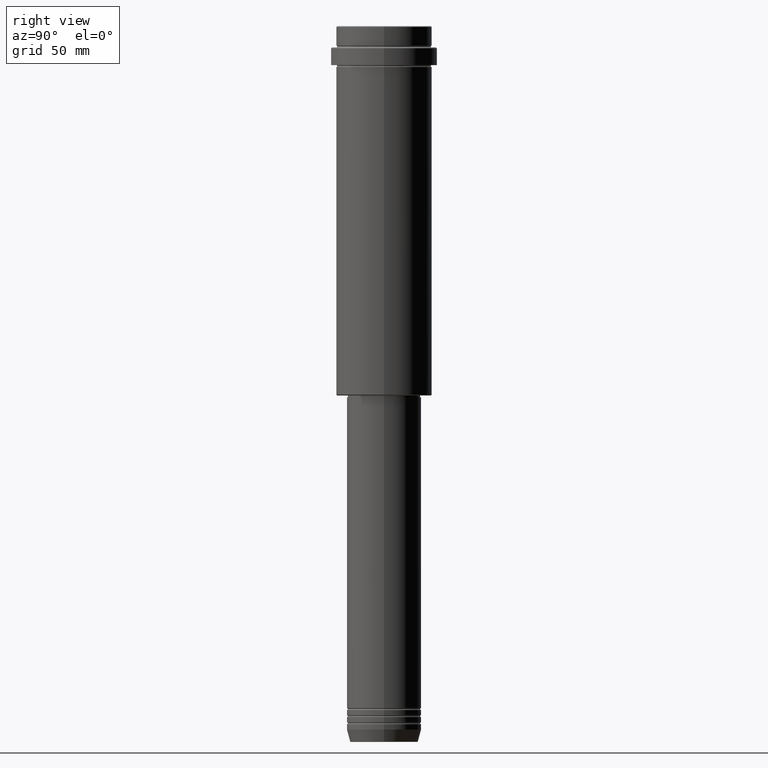
[diagram: clean part render]
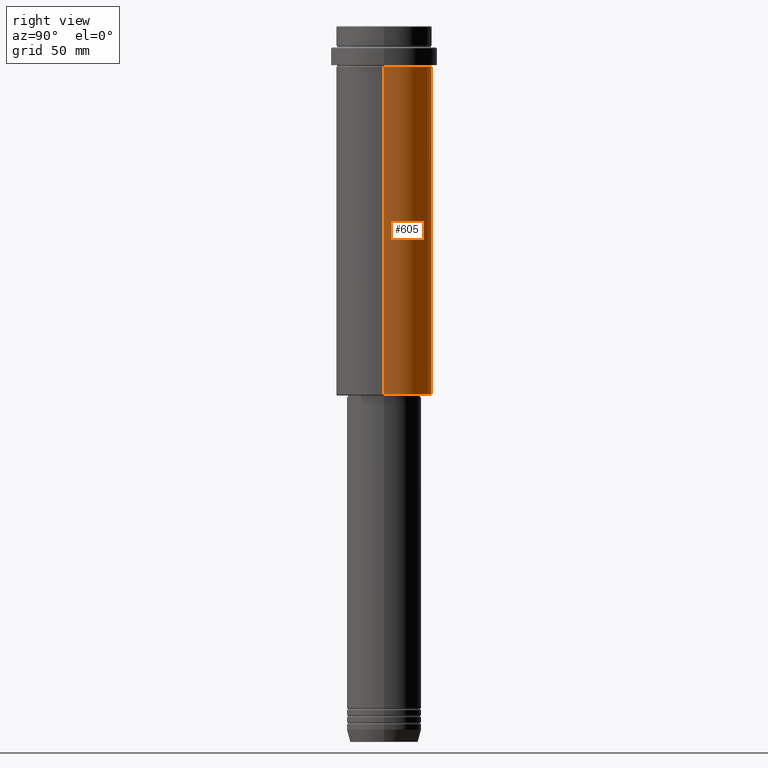
[diagram: same view with one face highlighted and labeled with its STEP entity id]
A machine part, right view. The second image highlights one B-rep face of the part: STEP entity #605.
In plain terms, the highlighted cylindrical surface (partial cylindrical patch) has radius 27 mm, axis along (-0, -0, 1).
Its self-contained STEP definition (entity closure, byte-faithful):
#3 = CARTESIAN_POINT ( 'NONE',  ( 0.000000000000000000, 0.000000000000000000, -23.00000000000000000 ) ) ;
#26 = DIRECTION ( 'NONE',  ( 1.000000000000000000, 0.000000000000000000, 0.000000000000000000 ) ) ;
#50 = AXIS2_PLACEMENT_3D ( 'NONE', #411, #1284, #523 ) ;
#90 = DIRECTION ( 'NONE',  ( -0.000000000000000000, -0.000000000000000000, 1.000000000000000000 ) ) ;
#94 = DIRECTION ( 'NONE',  ( -0.000000000000000000, -0.000000000000000000, 1.000000000000000000 ) ) ;
#217 = CARTESIAN_POINT ( 'NONE',  ( 0.000000000000000000, 0.000000000000000000, -207.5000000000000853 ) ) ;
#223 = VERTEX_POINT ( 'NONE', #792 ) ;
#288 = EDGE_CURVE ( 'NONE', #1165, #223, #903, .T. ) ;
#315 = FACE_OUTER_BOUND ( 'NONE', #1410, .T. ) ;
#397 = AXIS2_PLACEMENT_3D ( 'NONE', #217, #743, #665 ) ;
#411 = CARTESIAN_POINT ( 'NONE',  ( 0.000000000000000000, 0.000000000000000000, 0.000000000000000000 ) ) ;
#449 = CARTESIAN_POINT ( 'NONE',  ( 26.99999999999999645, 0.000000000000000000, -23.00000000000000000 ) ) ;
#523 = DIRECTION ( 'NONE',  ( 1.000000000000000000, 0.000000000000000000, 0.000000000000000000 ) ) ;
#537 = CARTESIAN_POINT ( 'NONE',  ( -26.99999999999999645, 3.306546357697853339E-15, -207.5000000000000853 ) ) ;
#568 = DIRECTION ( 'NONE',  ( -0.000000000000000000, -0.000000000000000000, 1.000000000000000000 ) ) ;
#596 = EDGE_CURVE ( 'NONE', #1012, #1165, #623, .T. ) ;
#601 = ORIENTED_EDGE ( 'NONE', *, *, #1013, .T. ) ;
#605 = ADVANCED_FACE ( 'NONE', ( #315 ), #1390, .T. ) ;
#618 = VECTOR ( 'NONE', #94, 1000.000000000000000 ) ;
#623 = LINE ( 'NONE', #1184, #618 ) ;
#633 = VERTEX_POINT ( 'NONE', #537 ) ;
#665 = DIRECTION ( 'NONE',  ( -1.000000000000000000, 0.000000000000000000, 0.000000000000000000 ) ) ;
#694 = VECTOR ( 'NONE', #90, 1000.000000000000000 ) ;
#721 = ORIENTED_EDGE ( 'NONE', *, *, #288, .F. ) ;
#743 = DIRECTION ( 'NONE',  ( -0.000000000000000000, -0.000000000000000000, 1.000000000000000000 ) ) ;
#762 = CIRCLE ( 'NONE', #397, 26.99999999999999645 ) ;
#790 = AXIS2_PLACEMENT_3D ( 'NONE', #3, #568, #26 ) ;
#792 = CARTESIAN_POINT ( 'NONE',  ( -26.99999999999999645, 3.306546357697853339E-15, -23.00000000000000000 ) ) ;
#903 = CIRCLE ( 'NONE', #790, 26.99999999999999645 ) ;
#956 = ORIENTED_EDGE ( 'NONE', *, *, #596, .F. ) ;
#1012 = VERTEX_POINT ( 'NONE', #1304 ) ;
#1013 = EDGE_CURVE ( 'NONE', #633, #223, #1093, .T. ) ;
#1076 = CARTESIAN_POINT ( 'NONE',  ( -26.99999999999999645, 3.306546357697853339E-15, 0.000000000000000000 ) ) ;
#1093 = LINE ( 'NONE', #1076, #694 ) ;
#1165 = VERTEX_POINT ( 'NONE', #449 ) ;
#1184 = CARTESIAN_POINT ( 'NONE',  ( 26.99999999999999645, 0.000000000000000000, 0.000000000000000000 ) ) ;
#1249 = ORIENTED_EDGE ( 'NONE', *, *, #1286, .T. ) ;
#1284 = DIRECTION ( 'NONE',  ( -0.000000000000000000, -0.000000000000000000, 1.000000000000000000 ) ) ;
#1286 = EDGE_CURVE ( 'NONE', #1012, #633, #762, .T. ) ;
#1304 = CARTESIAN_POINT ( 'NONE',  ( 26.99999999999999645, 0.000000000000000000, -207.5000000000000853 ) ) ;
#1390 = CYLINDRICAL_SURFACE ( 'NONE', #50, 26.99999999999999645 ) ;
#1410 = EDGE_LOOP ( 'NONE', ( #1249, #601, #721, #956 ) ) ;